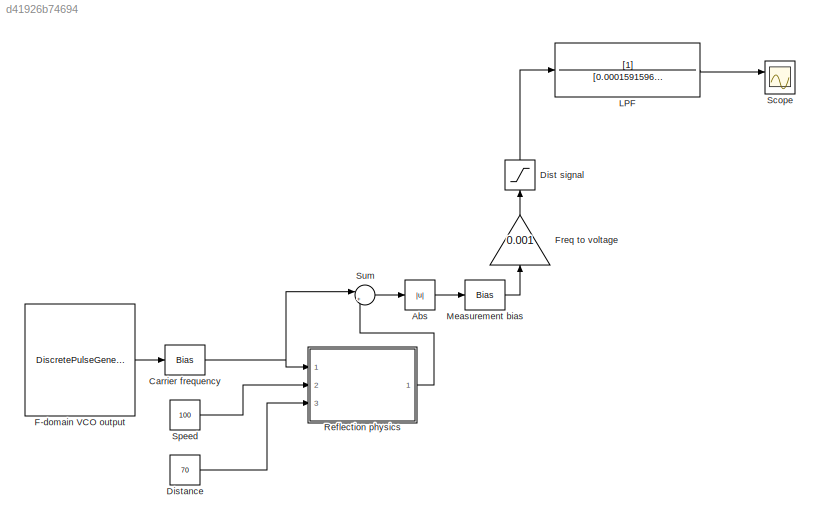
MODEL slx_d41926b74694
KIND model
CONFIG AbsTol = auto
CONFIG EnableMultiTasking = off
CONFIG FixedStep = 0.0000001
CONFIG MaxStep = auto
CONFIG MinStep = auto
CONFIG RelTol = 1e-3
CONFIG SampleTimeConstraint = Unconstrained
CONFIG SolverName = FixedStepAuto
CONFIG StartTime = 0.0
CONFIG StopTime = 1
BLOCK [Abs] Abs
  SaturateOnIntegerOverflow = off
BLOCK [Bias] Carrier frequency
  Bias = 2400000000
  SaturateOnIntegerOverflow = off
BLOCK [Saturate] Dist signal
  LowerLimit = 0
  NameLocation = right
  UpperLimit = 5
BLOCK [Constant] Distance
  Value = 70
BLOCK [DiscretePulseGenerator] F-domain VCO output
  Amplitude = 10000
  Period = 1/125000
  Ports = [0, 1]
  PulseType = Time based
  PulseWidth = 50
BLOCK [Gain] Freq to voltage
  Gain = 0.001
  NameLocation = right
BLOCK [TransferFcn] LPF
  Denominator = [0.00015915964,1]
BLOCK [Bias] Measurement bias
  Bias = -1000
  SaturateOnIntegerOverflow = off
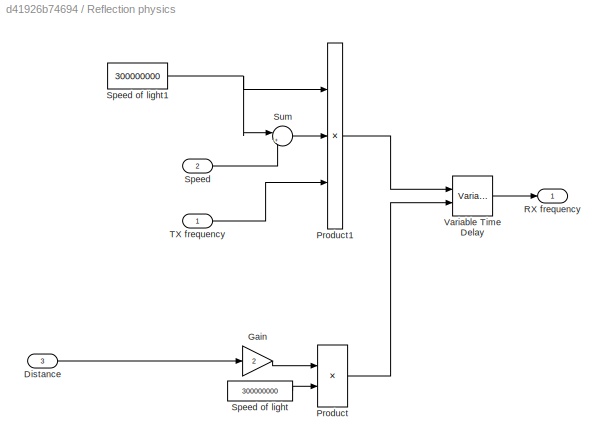
BLOCK [SubSystem] Reflection physics
  Ports = [3, 1]
  RequestExecContextInheritance = off
BLOCK [Inport] Reflection physics/Distance
  Port = 3
BLOCK [Gain] Reflection physics/Gain
  Gain = 2
BLOCK [Product] Reflection physics/Product
  Inputs = */
  Ports = [2, 1]
BLOCK [Product] Reflection physics/Product1
  Inputs = */*
  Ports = [3, 1]
BLOCK [Outport] Reflection physics/RX frequency
BLOCK [Inport] Reflection physics/Speed
  Port = 2
BLOCK [Constant] Reflection physics/Speed of light
  Value = 300000000
BLOCK [Constant] Reflection physics/Speed of light1
  Value = 300000000
BLOCK [Sum] Reflection physics/Sum
  Inputs = |+-
  Ports = [2, 1]
BLOCK [Inport] Reflection physics/TX frequency
BLOCK [VariableTransportDelay] Reflection physics/Variable Time Delay
  InitialOutput = 2.4e9
  MaximumDelay = 10
  Ports = [2, 1]
BLOCK [Scope] Scope
  Floating = off
  NumInputPorts = 2
  Ports = [2]
  ScopeSpecificationString = Simulink.scopes.TimeScopeBlockCfg('CurrentConfiguration', extmgr.ConfigurationSet(extmgr.Configuration('Core','General UI',true),extmgr.Configuration('Core','Source UI',true),extmgr.Configuration('Sources','WiredSimulink',true),extmgr.Configuration('Visuals','Time Domain',true,'SerializedDisplays',{struct('MinYLimReal','-0.07195','MaxYLimReal','0.64759','YLabelReal','','MinYLimMag','0.00000','MaxY...<+1439ch>
BLOCK [Constant] Speed
  Value = 100
BLOCK [Sum] Sum
  Inputs = |+-
  Ports = [2, 1]
LINE Abs:1 -> Measurement bias:1
NET Carrier frequency:1 -> Reflection physics:1, Sum:1
LINE Dist signal:1 -> LPF:1
LINE Distance:1 -> Reflection physics:3
LINE F-domain VCO output:1 -> Carrier frequency:1
LINE Freq to voltage:1 -> Dist signal:1
LINE LPF:1 -> Scope:1
LINE Measurement bias:1 -> Freq to voltage:1
LINE Reflection physics/Distance:1 -> Reflection physics/Gain:1
LINE Reflection physics/Gain:1 -> Reflection physics/Product:1
LINE Reflection physics/Product1:1 -> Reflection physics/Variable Time Delay:1
LINE Reflection physics/Product:1 -> Reflection physics/Variable Time Delay:2
NET Reflection physics/Speed of light1:1 -> Reflection physics/Product1:1, Reflection physics/Sum:1
LINE Reflection physics/Speed of light:1 -> Reflection physics/Product:2
LINE Reflection physics/Speed:1 -> Reflection physics/Sum:2
LINE Reflection physics/Sum:1 -> Reflection physics/Product1:2
LINE Reflection physics/TX frequency:1 -> Reflection physics/Product1:3
LINE Reflection physics/Variable Time Delay:1 -> Reflection physics/RX frequency:1
LINE Reflection physics:1 -> Sum:2
LINE Speed:1 -> Reflection physics:2
LINE Sum:1 -> Abs:1
note: NET lines group one-source signal fan-out (src -> all destinations, sorted); 1:1 wires keep LINE
